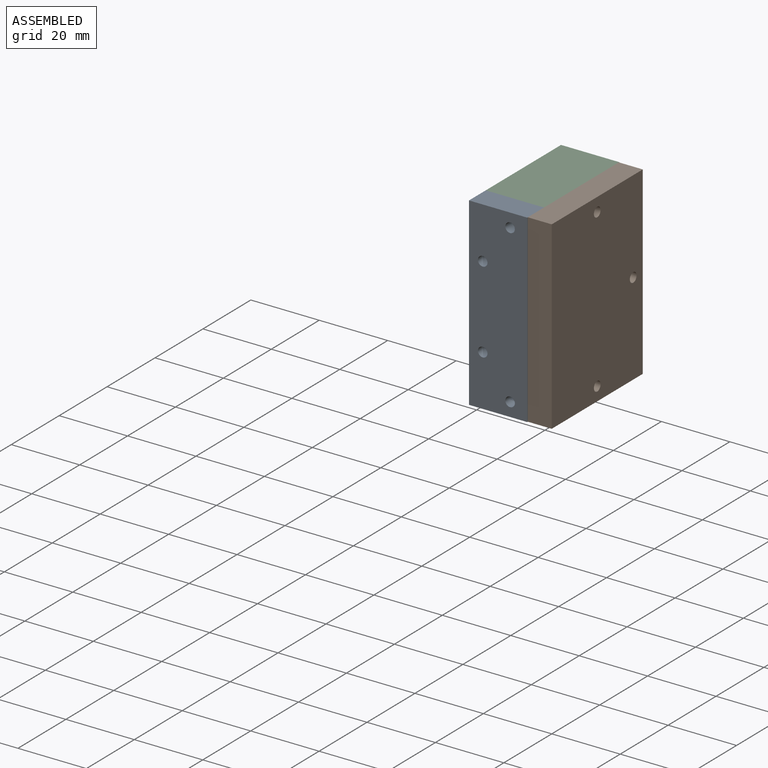
[diagram: assembled view]
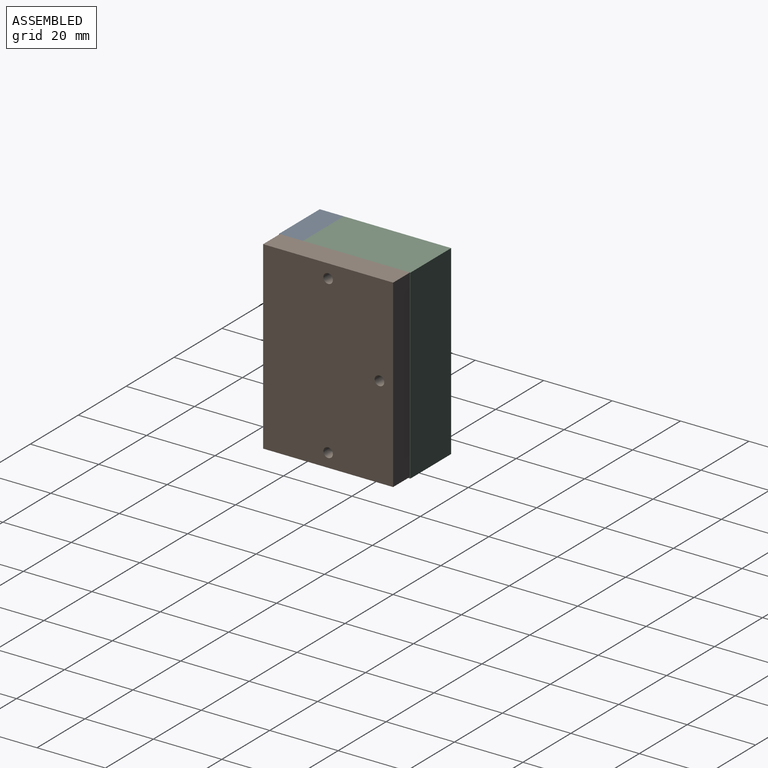
[diagram: assembled view, second angle]
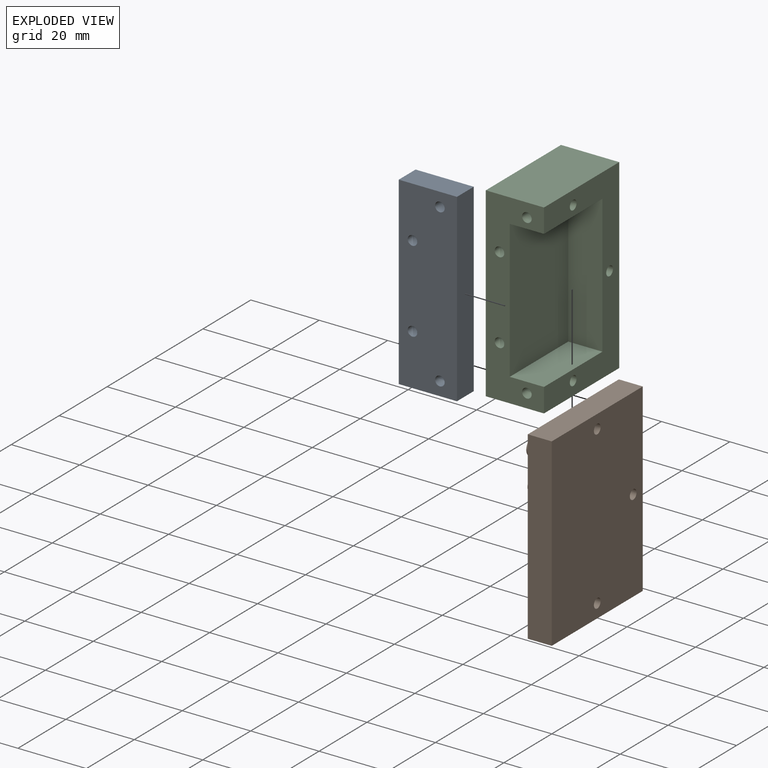
[diagram: exploded view]
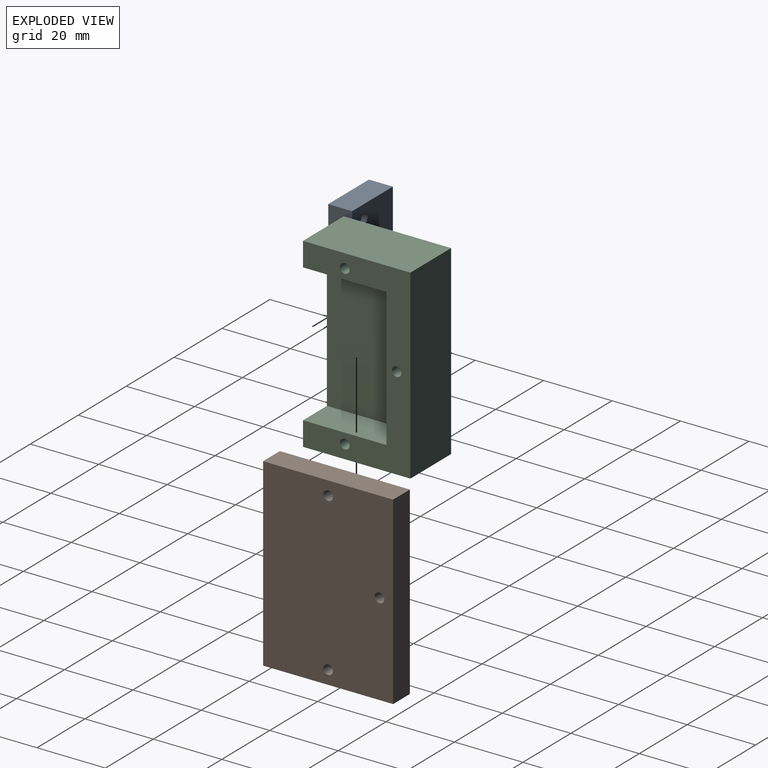
[diagram: exploded view, second angle]
ASSEMBLY  parts=3 mates=5
PART A: 10 faces, bbox 54x7x17 mm
  f0: plane 54x7mm, normal (0,0,1), area 378mm2, adj f1,f3,f4,f5
  f1: plane 17x7mm, normal (-1,0,0), area 119mm2, adj f0,f2,f4,f5
  f2: plane 54x7mm, normal (0,0,-1), area 378mm2, adj f1,f3,f4,f5
  f3: plane 17x7mm, normal (1,0,0), area 119mm2, adj f0,f2,f4,f5
  f4: plane 54x17mm, normal (0,-1,0), area 893.4mm2, adj f0,f1,f2,f3,f6,f7,f8,f9
  f5: plane 54x17mm, normal (0,1,0), area 893.4mm2, adj f0,f1,f2,f3,f6,f7,f8,f9
  f6: cylinder r=1.4mm len=7mm, axis (0,-1,0), area 61.6mm2, adj f4,f5
  f7: cylinder r=1.4mm len=7mm, axis (0,-1,0), area 61.6mm2, adj f4,f5
  f8: cylinder r=1.4mm len=7mm, axis (0,-1,0), area 61.6mm2, adj f4,f5
  f9: cylinder r=1.4mm len=7mm, axis (0,-1,0), area 61.6mm2, adj f4,f5
PART B: 17 faces, bbox 38x19x54 mm
  f0: plane 38x7mm, normal (0,0,1), area 266mm2, adj f1,f3,f4,f5
  f1: plane 54x7mm, normal (-1,0,0), area 378mm2, adj f0,f2,f4,f5
  f2: plane 38x7mm, normal (0,0,-1), area 266mm2, adj f1,f3,f4,f5
  f3: plane 54x7mm, normal (1,0,0), area 378mm2, adj f0,f2,f4,f5
  f4: plane 54x38mm, normal (0,-1,0), area 1991.1mm2, adj f0,f1,f2,f3,f6,f7,f8,f9
  f5: plane 54x38mm, normal (0,1,0), area 2033.5mm2, adj f0,f1,f2,f3,f6,f7,f8
  f6: cylinder r=1.4mm len=7mm, axis (0,-1,0), area 61.6mm2, adj f4,f5
  f7: cylinder r=1.4mm len=7mm, axis (0,-1,0), area 61.6mm2, adj f4,f5
  f8: cylinder r=1.4mm len=7mm, axis (0,-1,0), area 61.6mm2, adj f4,f5
  f9: cylinder r=2.5mm len=12mm, axis (0,1,0), area 188.5mm2, adj f4,f10
  f10: plane 5x5mm, normal (0,-1,0), area 19.6mm2, adj f9
  f11: cylinder r=2mm len=12mm, axis (0,1,0), area 150.8mm2, adj f4,f12
  f12: plane 4x4mm, normal (0,-1,0), area 12.6mm2, adj f11
  f13: cylinder r=1.5mm len=12mm, axis (0,1,0), area 113.1mm2, adj f4,f14
  f14: plane 3x3mm, normal (0,-1,0), area 7.1mm2, adj f13
  f15: cylinder r=1mm len=12mm, axis (0,1,0), area 75.4mm2, adj f4,f16
  f16: plane 2x2mm, normal (0,-1,0), area 3.1mm2, adj f15
PART C: 26 faces, bbox 31.4x17x54.4 mm
  f0: plane 0.4x0.01mm, normal (1,0,0), area 0mm2, adj f12,f22
  f1: plane 0.4x0.01mm, normal (1,0,0), area 0mm2, adj f18,f20
  f2: plane 31.4x17mm, normal (0,0,1), area 533.8mm2, adj f4,f5,f9,f11
  f3: plane 31.4x17mm, normal (0,0,-1), area 533.8mm2, adj f4,f5,f9,f11
  f4: plane 54.4x31.4mm, normal (0,1,0), area 1708.2mm2, adj f2,f3,f5,f11
  f5: plane 54.4x17mm, normal (-1,0,0), area 924.8mm2, adj f2,f3,f4,f9
  f6: plane 40.4x10mm, normal (1,0,0), area 404mm2, adj f7,f8,f9,f10
  f7: plane 24.4x10mm, normal (0,0,-1), area 244mm2, adj f6,f9,f10,f11
  f8: plane 24.4x10mm, normal (0,0,1), area 244mm2, adj f6,f9,f10,f11
  f9: plane 54.4x31.4mm, normal (0,-1,0), area 703.9mm2, adj f2,f3,f5,f6,f7,f8,f11,f20
  f10: plane 40.4x24.4mm, normal (0,-1,0), area 985.8mm2, adj f6,f7,f8,f11
  f11: plane 54.4x17mm, normal (1,0,0), area 496.2mm2, adj f2,f3,f4,f7,f8,f9,f10,f12
  f12: cylinder r=1.4mm len=12mm, axis (1,0,0), area 99.4mm2, adj f0,f11,f13,f22
  f13: plane 0.4x0.01mm, normal (1,0,0), area 0mm2, adj f12,f22
  f14: cylinder r=1.4mm len=12mm, axis (1,0,0), area 105.6mm2, adj f11,f15
  f15: plane 2.8x2.8mm, normal (1,0,0), area 6.2mm2, adj f14
  f16: cylinder r=1.4mm len=12mm, axis (1,0,0), area 105.6mm2, adj f11,f17
  f17: plane 2.8x2.8mm, normal (1,0,0), area 6.2mm2, adj f16
  f18: cylinder r=1.4mm len=12mm, axis (1,0,0), area 99.4mm2, adj f1,f11,f19,f20
  f19: plane 0.4x0.01mm, normal (1,0,0), area 0mm2, adj f18,f20
  f20: cylinder r=1.4mm len=9.7mm, axis (0,-1,0), area 77.6mm2, adj f1,f9,f18,f19,f21
  f21: plane 2.8x2.8mm, normal (0,-1,0), area 6.2mm2, adj f20
  f22: cylinder r=1.4mm len=9.7mm, axis (0,-1,0), area 77.6mm2, adj f0,f9,f12,f13,f23
  f23: plane 2.8x2.8mm, normal (0,-1,0), area 6.2mm2, adj f22
  f24: cylinder r=1.4mm len=9.7mm, axis (0,-1,0), area 85.3mm2, adj f9,f25
  f25: plane 2.8x2.8mm, normal (0,-1,0), area 6.2mm2, adj f24
PLACE A rot(axis=(0,1,0),90deg) t=(-122.79,-94.28,79.29)mm
PLACE B rot(axis=(-0.71,-0.71,0),180deg) t=(-107.29,-82.03,79.29)mm
PLACE C rot(axis=(-0.71,0.71,0),180deg) t=(-124.29,-82.08,79.09)mm
MATE planar A.f2 <-> C.f4  axis (-1,0,0) through (-131.29,-97.78,79.29)mm
MATE planar A.f5 <-> C.f11  axis (0,1,0) through (-114.29,-94.28,79.29)mm
MATE planar B.f2 <-> C.f3  axis (0,0,1) through (-110.79,-82.03,106.29)mm
MATE planar B.f4 <-> C.f9  axis (-1,0,0) through (-114.29,-82.08,79.19)mm
MATE planar C.f3 <-> A.f1  axis (0,0,1) through (-122.79,-78.58,106.29)mm
